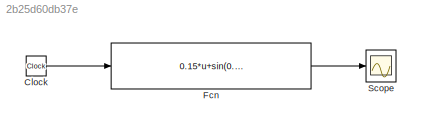
MODEL slx_2b25d60db37e
KIND model
BLOCK [Clock] Clock
BLOCK [Fcn] Fcn
  Expr = 0.15*u+sin(0.8*u)+0.4*cos(0.8*u)+0.075
BLOCK [Scope] Scope
  DataFormat = StructureWithTime
  Floating = off
  NumInputPorts = 1
  Ports = [1]
  SampleTime = 0
  SaveName = ScopeData66
  SaveToWorkspace = on
  ShowLegends = off
LINE Clock:1 -> Fcn:1
LINE Fcn:1 -> Scope:1
